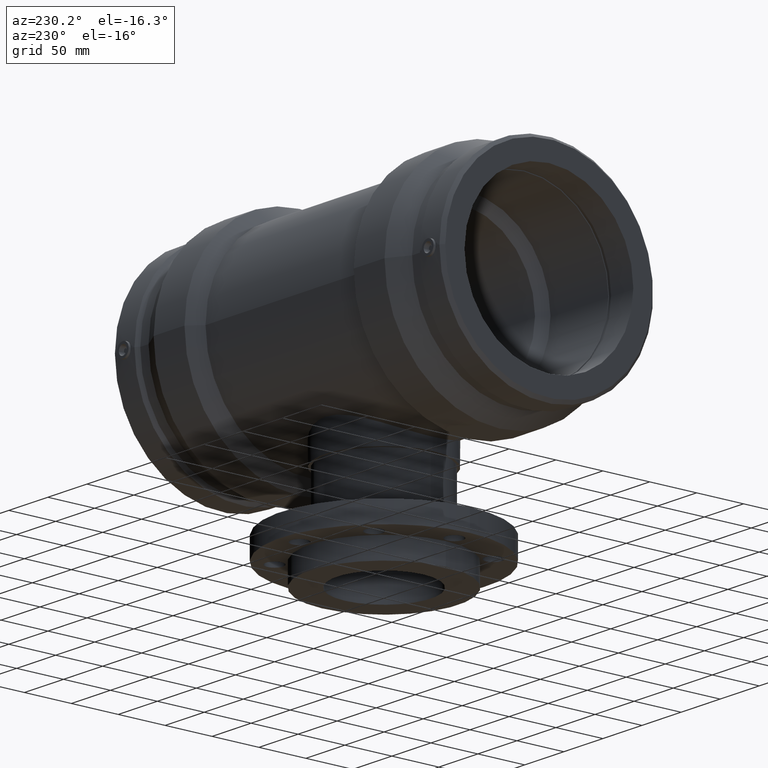
[diagram: clean part render]
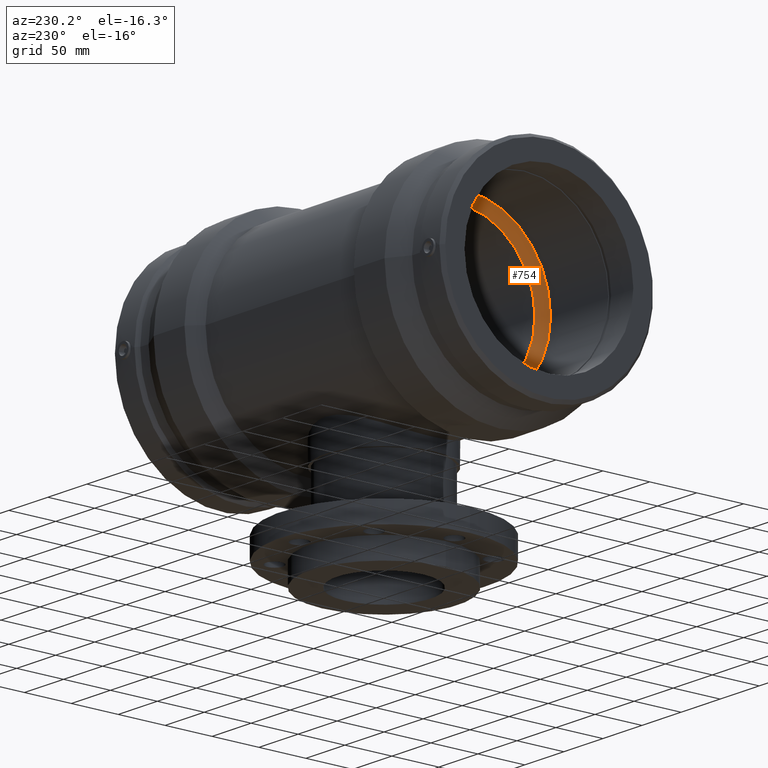
[diagram: same view with one face highlighted and labeled with its STEP entity id]
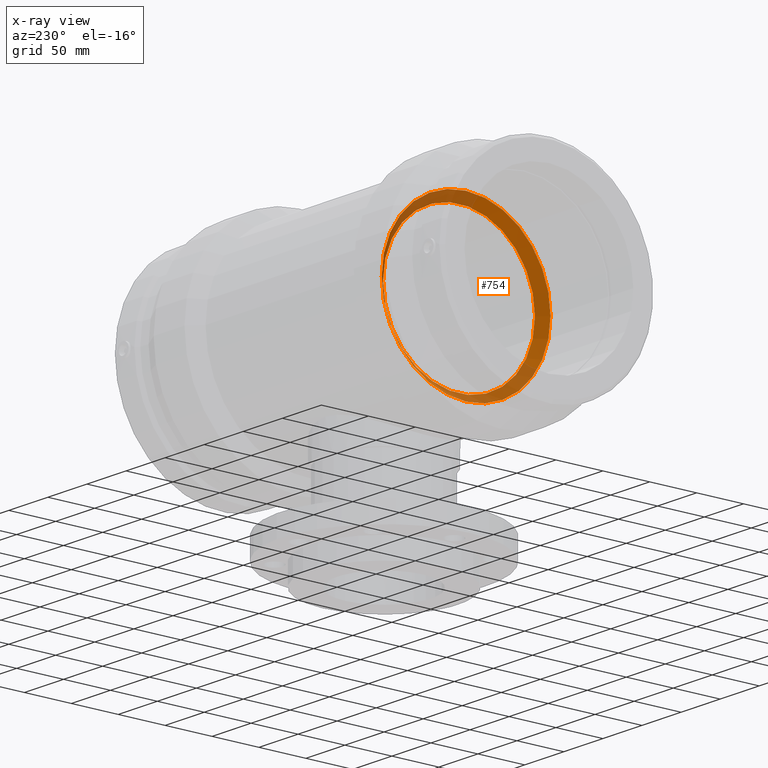
[diagram: x-ray of the same camera — body ghosted, the highlighted face saturated]
A machine part, auxiliary view. The second image highlights one B-rep face of the part: STEP entity #754.
The next image is the same camera in x-ray: the body ghosted, the highlighted face saturated — about 39% of this face is hidden behind the body in this view.
In plain terms, the highlighted conical surface has half-angle 45 deg.
Its self-contained STEP definition (entity closure, byte-faithful):
#28=CONICAL_SURFACE('',#875,85.5,45.);
#116=FACE_BOUND('',#403,.T.);
#180=CIRCLE('',#874,81.);
#181=CIRCLE('',#876,90.);
#270=FACE_OUTER_BOUND('',#402,.T.);
#402=EDGE_LOOP('',(#688));
#403=EDGE_LOOP('',(#689));
#483=VERTEX_POINT('',#1715);
#484=VERTEX_POINT('',#1718);
#553=EDGE_CURVE('',#483,#483,#180,.T.);
#554=EDGE_CURVE('',#484,#484,#181,.T.);
#688=ORIENTED_EDGE('',*,*,#553,.T.);
#689=ORIENTED_EDGE('',*,*,#554,.F.);
#754=ADVANCED_FACE('',(#270,#116),#28,.F.);
#874=AXIS2_PLACEMENT_3D('',#1716,#1113,#1114);
#875=AXIS2_PLACEMENT_3D('',#1717,#1115,#1116);
#876=AXIS2_PLACEMENT_3D('',#1719,#1117,#1118);
#1113=DIRECTION('center_axis',(1.,0.,0.));
#1114=DIRECTION('ref_axis',(0.,0.,-1.));
#1115=DIRECTION('center_axis',(-1.,0.,0.));
#1116=DIRECTION('ref_axis',(0.,1.,0.));
#1117=DIRECTION('center_axis',(1.,0.,0.));
#1118=DIRECTION('ref_axis',(0.,0.,-1.));
#1715=CARTESIAN_POINT('',(-96.,81.,0.));
#1716=CARTESIAN_POINT('Origin',(-96.,0.,0.));
#1717=CARTESIAN_POINT('Origin',(-100.5,0.,0.));
#1718=CARTESIAN_POINT('',(-105.,90.,0.));
#1719=CARTESIAN_POINT('Origin',(-105.,0.,0.));